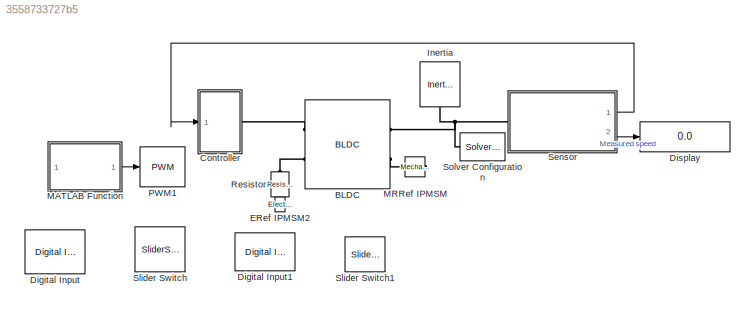
MODEL slx_3558733727b5
KIND model
CONFIG AbsTol = auto
CONFIG EnableMultiTasking = on
CONFIG FixedStep = auto
CONFIG InitFcn = load bldcData
CONFIG MaxStep = Ts_motor
CONFIG MinStep = auto
CONFIG RelTol = 1e-3
CONFIG SampleTimeConstraint = Unconstrained
CONFIG Solver = odeN
CONFIG SolverName = odeN
CONFIG StartTime = 0.0
CONFIG StopTime = 35
WORKSPACE source: mxarray member
WORKSPACE encoderResolution = 2000
WORKSPACE hallOffset = '0.5'
WORKSPACE indexOffset = 850
WORKSPACE polePairs = '4'
BLOCK [Reference] BLDC  REF=ee_lib/Electromechanical/Permanent Magnet/BLDC
  Ports = [0, 0, 0, 0, 0, 2, 2]
  SourceBlock = ee_lib/Electromechanical/Permanent Magnet/BLDC
  SourceProductBaseCode = PS
  SourceType = BLDC
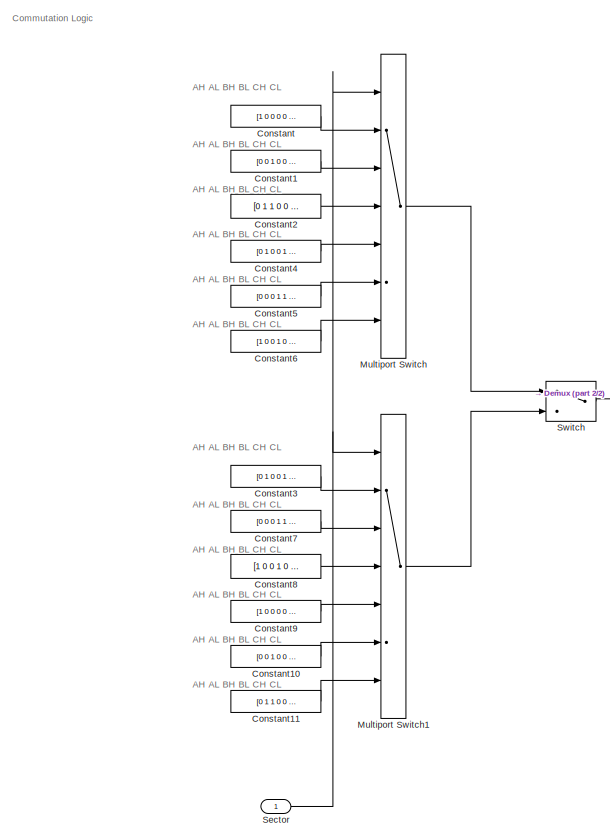
[diagram: Controller - part 1/2, left side, full height]
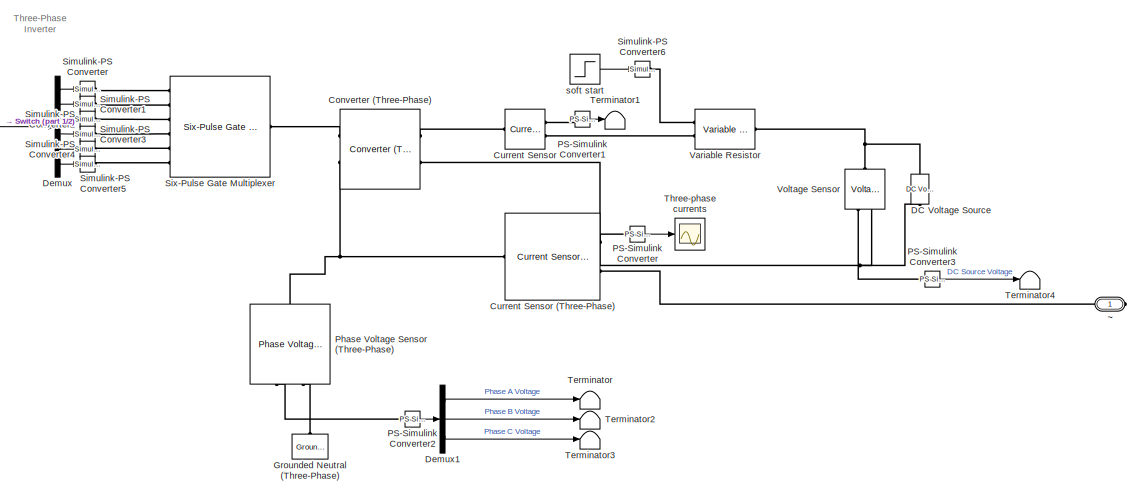
[diagram: Controller - part 2/2, middle right region]
BLOCK [SubSystem] Controller
  Ports = [1, 0, 0, 0, 0, 0, 1]
  RequestExecContextInheritance = off
BLOCK [Constant] Controller/Constant
  Value = [1 0 0 0 0 1]
BLOCK [Constant] Controller/Constant1
  Value = [0 0 1 0 0 1]
BLOCK [Constant] Controller/Constant10
  Value = [0 0 1 0 0 1]
BLOCK [Constant] Controller/Constant11
  Value = [0 1 1 0 0 0]
BLOCK [Constant] Controller/Constant2
  Value = [0 1 1 0 0 0]
BLOCK [Constant] Controller/Constant3
  Value = [0 1 0 0 1 0]
BLOCK [Constant] Controller/Constant4
  Value = [0 1 0 0 1 0]
BLOCK [Constant] Controller/Constant5
  Value = [0 0 0 1 1 0]
BLOCK [Constant] Controller/Constant6
  Value = [1 0 0 1 0 0]
BLOCK [Constant] Controller/Constant7
  Value = [0 0 0 1 1 0]
BLOCK [Constant] Controller/Constant8
  Value = [1 0 0 1 0 0]
BLOCK [Constant] Controller/Constant9
  Value = [1 0 0 0 0 1]
BLOCK [Reference] Controller/Converter (Three-Phase)  REF=ee_lib/Semiconductors &
Converters/Converters/Converter
(Three-Phase)
  Ports = [0, 0, 0, 0, 0, 2, 2]
  SourceBlock = ee_lib/Semiconductors &\nConverters/Converters/Converter\n(Three-Phase)
  SourceProductBaseCode = PS
  SourceType = Converter\n(Three-Phase)
BLOCK [Reference] Controller/Current Sensor  REF=fl_lib/Electrical/Electrical Sensors/Current Sensor
  Ports = [0, 0, 0, 0, 0, 1, 2]
  SourceBlock = fl_lib/Electrical/Electrical Sensors/Current Sensor
  SourceProductBaseCode = SS
  SourceType = Current Sensor
BLOCK [Reference] Controller/Current Sensor (Three-Phase)  REF=ee_lib/Sensors &
Transducers/Current Sensor
(Three-Phase)
  Ports = [0, 0, 0, 0, 0, 1, 2]
  SourceBlock = ee_lib/Sensors &\nTransducers/Current Sensor\n(Three-Phase)
  SourceProductBaseCode = PS
  SourceType = Current Sensor\n(Three-Phase)
BLOCK [Reference] Controller/DC Voltage Source  REF=ee_lib/Additional
Components/SPICE Sources/DC Voltage Source
  NameLocation = right
  Ports = [0, 0, 0, 0, 0, 1, 1]
  SourceBlock = ee_lib/Additional\nComponents/SPICE Sources/DC Voltage Source
  SourceProductBaseCode = PS
  SourceType = DC Voltage Source
BLOCK [Demux] Controller/Demux
  Outputs = 6
  Ports = [1, 6]
BLOCK [Demux] Controller/Demux1
  Outputs = 3
  Ports = [1, 3]
BLOCK [Reference] Controller/Grounded Neutral (Three-Phase)  REF=ee_lib/Connectors &
References/Grounded Neutral
(Three-Phase)
  NameLocation = right
  Ports = [0, 0, 0, 0, 0, 1]
  SourceBlock = ee_lib/Connectors &\nReferences/Grounded Neutral\n(Three-Phase)
  SourceProductBaseCode = PS
  SourceType = Grounded Neutral\n(Three-Phase)
BLOCK [MultiPortSwitch] Controller/Multiport Switch
  InputSameDT = off
  Inputs = 6
  Ports = [7, 1]
  SaturateOnIntegerOverflow = off
BLOCK [MultiPortSwitch] Controller/Multiport Switch1
  InputSameDT = off
  Inputs = 6
  Ports = [7, 1]
  SaturateOnIntegerOverflow = off
BLOCK [Reference] Controller/PS-Simulink Converter  REF=nesl_utility/PS-Simulink
Converter
  Ports = [0, 1, 0, 0, 0, 1]
  SourceBlock = nesl_utility/PS-Simulink\nConverter
  SourceProductBaseCode = SS
  SourceType = PS-Simulink\nConverter
BLOCK [Reference] Controller/PS-Simulink Converter1  REF=nesl_utility/PS-Simulink
Converter
  Ports = [0, 1, 0, 0, 0, 1]
  SourceBlock = nesl_utility/PS-Simulink\nConverter
  SourceProductBaseCode = SS
  SourceType = PS-Simulink\nConverter
BLOCK [Reference] Controller/PS-Simulink Converter2  REF=nesl_utility/PS-Simulink
Converter
  Ports = [0, 1, 0, 0, 0, 1]
  SourceBlock = nesl_utility/PS-Simulink\nConverter
  SourceProductBaseCode = SS
  SourceType = PS-Simulink\nConverter
BLOCK [Reference] Controller/PS-Simulink Converter3  REF=nesl_utility/PS-Simulink
Converter
  Ports = [0, 1, 0, 0, 0, 1]
  SourceBlock = nesl_utility/PS-Simulink\nConverter
  SourceProductBaseCode = SS
  SourceType = PS-Simulink\nConverter
BLOCK [Reference] Controller/Phase Voltage Sensor (Three-Phase)  REF=ee_lib/Sensors &
Transducers/Phase Voltage Sensor
(Three-Phase)
  NameLocation = right
  Ports = [0, 0, 0, 0, 0, 1, 2]
  SourceBlock = ee_lib/Sensors &\nTransducers/Phase Voltage Sensor\n(Three-Phase)
  SourceProductBaseCode = PS
  SourceType = Phase Voltage Sensor\n(Three-Phase)
BLOCK [Inport] Controller/Sector
BLOCK [Reference] Controller/Simulink-PS Converter  REF=nesl_utility/Simulink-PS
Converter
  Ports = [1, 0, 0, 0, 0, 0, 1]
  SourceBlock = nesl_utility/Simulink-PS\nConverter
  SourceProductBaseCode = SS
  SourceType = Simulink-PS\nConverter
BLOCK [Reference] Controller/Simulink-PS Converter1  REF=nesl_utility/Simulink-PS
Converter
  Ports = [1, 0, 0, 0, 0, 0, 1]
  SourceBlock = nesl_utility/Simulink-PS\nConverter
  SourceProductBaseCode = SS
  SourceType = Simulink-PS\nConverter
BLOCK [Reference] Controller/Simulink-PS Converter2  REF=nesl_utility/Simulink-PS
Converter
  Ports = [1, 0, 0, 0, 0, 0, 1]
  SourceBlock = nesl_utility/Simulink-PS\nConverter
  SourceProductBaseCode = SS
  SourceType = Simulink-PS\nConverter
BLOCK [Reference] Controller/Simulink-PS Converter3  REF=nesl_utility/Simulink-PS
Converter
  Ports = [1, 0, 0, 0, 0, 0, 1]
  SourceBlock = nesl_utility/Simulink-PS\nConverter
  SourceProductBaseCode = SS
  SourceType = Simulink-PS\nConverter
BLOCK [Reference] Controller/Simulink-PS Converter4  REF=nesl_utility/Simulink-PS
Converter
  Ports = [1, 0, 0, 0, 0, 0, 1]
  SourceBlock = nesl_utility/Simulink-PS\nConverter
  SourceProductBaseCode = SS
  SourceType = Simulink-PS\nConverter
BLOCK [Reference] Controller/Simulink-PS Converter5  REF=nesl_utility/Simulink-PS
Converter
  Ports = [1, 0, 0, 0, 0, 0, 1]
  SourceBlock = nesl_utility/Simulink-PS\nConverter
  SourceProductBaseCode = SS
  SourceType = Simulink-PS\nConverter
BLOCK [Reference] Controller/Simulink-PS Converter6  REF=nesl_utility/Simulink-PS
Converter
  Ports = [1, 0, 0, 0, 0, 0, 1]
  SourceBlock = nesl_utility/Simulink-PS\nConverter
  SourceProductBaseCode = SS
  SourceType = Simulink-PS\nConverter
BLOCK [Reference] Controller/Six-Pulse Gate Multiplexer  REF=ee_lib/Semiconductors &
Converters/Converters/Six-Pulse Gate
Multiplexer
  Ports = [0, 0, 0, 0, 0, 6, 1]
  SourceBlock = ee_lib/Semiconductors &\nConverters/Converters/Six-Pulse Gate\nMultiplexer
  SourceProductBaseCode = PS
  SourceType = Six-Pulse Gate\nMultiplexer
BLOCK [Switch] Controller/Switch
  Criteria = u2 > Threshold
  InputSameDT = off
  SaturateOnIntegerOverflow = off
  Threshold = 1
BLOCK [Terminator] Controller/Terminator
BLOCK [Terminator] Controller/Terminator1
BLOCK [Terminator] Controller/Terminator2
BLOCK [Terminator] Controller/Terminator3
BLOCK [Terminator] Controller/Terminator4
BLOCK [Scope] Controller/Three-phase currents
  Floating = off
  NumInputPorts = 1
  Ports = [1]
  ScopeSpecificationString = Simulink.scopes.TimeScopeBlockCfg('CurrentConfiguration', extmgr.ConfigurationSet(extmgr.Configuration('Core','General UI',true),extmgr.Configuration('Core','Source UI',true),extmgr.Configuration('Sources','WiredSimulink',true,'DataLoggingVariableName','ScopeData1'),extmgr.Configuration('Visuals','Time Domain',true,'SerializedDisplays',{struct('MinYLimReal','-1248.2374','MaxYLimReal','1248.23739',...<+1452ch>
BLOCK [Reference] Controller/Variable Resistor  REF=fl_lib/Electrical/Electrical Elements/Variable Resistor
  Ports = [0, 0, 0, 0, 0, 2, 1]
  SourceBlock = fl_lib/Electrical/Electrical Elements/Variable Resistor
  SourceProductBaseCode = SS
  SourceType = Variable Resistor
BLOCK [Reference] Controller/Voltage Sensor  REF=fl_lib/Electrical/Electrical Sensors/Voltage Sensor
  NameLocation = right
  Ports = [0, 0, 0, 0, 0, 1, 2]
  SourceBlock = fl_lib/Electrical/Electrical Sensors/Voltage Sensor
  SourceProductBaseCode = SS
  SourceType = Voltage Sensor
BLOCK [Step] Controller/soft start
  After = 1e-3
  Before = 0.5
  SampleTime = Ts_motor
  Time = 4
BLOCK [PMIOPort] Controller/~
  Side = Right
BLOCK [Reference] Digital Input  REF=arduinolib/Digital Input
  Ports = [0, 1]
  SourceBlock = arduinolib/Digital Input
  SourceProductBaseCode = ARDUINO
  SourceType = Arduino Digital Input
BLOCK [Reference] Digital Input1  REF=arduinolib/Digital Input
  Ports = [0, 1]
  SourceBlock = arduinolib/Digital Input
  SourceProductBaseCode = ARDUINO
  SourceType = Arduino Digital Input
BLOCK [Display] Display
  Decimation = 1
  Ports = [1]
BLOCK [Reference] ERef IPMSM2  REF=fl_lib/Electrical/Electrical Elements/Electrical Reference
  NameLocation = right
  Ports = [0, 0, 0, 0, 0, 1]
  SourceBlock = fl_lib/Electrical/Electrical Elements/Electrical Reference
  SourceProductName = Foundation Library
  SourceType = Electrical Reference
BLOCK [Reference] Inertia  REF=fl_lib/Mechanical/Rotational Elements/Inertia
  NameLocation = right
  Ports = [0, 0, 0, 0, 0, 1]
  SourceBlock = fl_lib/Mechanical/Rotational Elements/Inertia
  SourceProductName = Foundation Library
  SourceType = Inertia
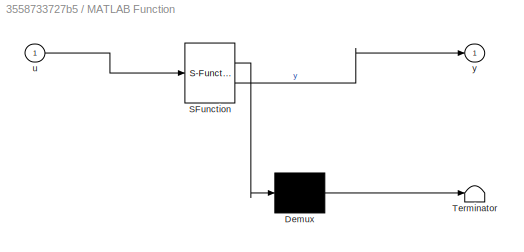
BLOCK [SubSystem] MATLAB Function
  ErrorFcn = Stateflow.Translate.translate
  PermitHierarchicalResolution = ExplicitOnly
  Ports = [1, 1]
  RequestExecContextInheritance = off
  SFBlockType = MATLAB Function
  TreatAsAtomicUnit = on
BLOCK [Demux] MATLAB Function/ Demux 
  Outputs = 1
  Ports = [1, 1]
BLOCK [S-Function] MATLAB Function/ SFunction 
  EnableBusSupport = off
  FunctionName = sf_sfun
  PortCounts = [1 2]
  Ports = [1, 2]
  SFcnIsStateOwnerBlock = off
  SFunctionDeploymentMode = off
  Tag = Stateflow S-Function 2
BLOCK [Terminator] MATLAB Function/ Terminator 
BLOCK [Inport] MATLAB Function/u
BLOCK [Outport] MATLAB Function/y
BLOCK [Reference] MRRef IPMSM  REF=fl_lib/Mechanical/Rotational Elements/Mechanical
Rotational Reference
  NameLocation = top
  Ports = [0, 0, 0, 0, 0, 1]
  SourceBlock = fl_lib/Mechanical/Rotational Elements/Mechanical\nRotational Reference
  SourceProductName = Foundation Library
  SourceType = Mechanical\nRotational Reference
BLOCK [Reference] PWM1  REF=arduinolib/PWM
  Ports = [1]
  SourceBlock = arduinolib/PWM
  SourceProductBaseCode = ARDUINO
  SourceType = Arduino PWM
BLOCK [Reference] Resistor  REF=fl_lib/Electrical/Electrical Elements/Resistor
  NameLocation = left
  Ports = [0, 0, 0, 0, 0, 1, 1]
  SourceBlock = fl_lib/Electrical/Electrical Elements/Resistor
  SourceProductBaseCode = SS
  SourceType = Resistor
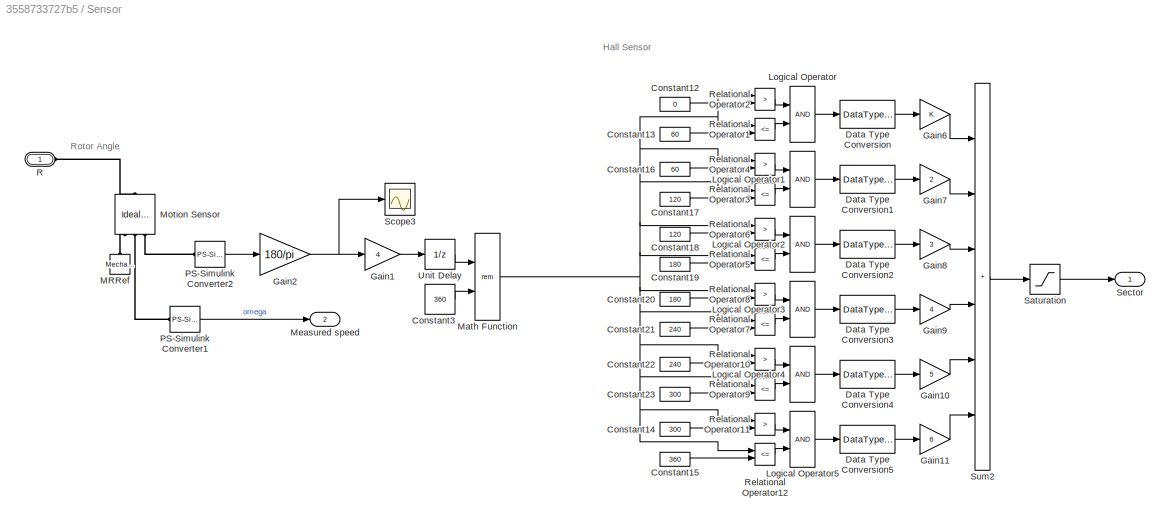
BLOCK [SubSystem] Sensor
  Ports = [0, 2, 0, 0, 0, 1]
  RequestExecContextInheritance = off
BLOCK [Constant] Sensor/Constant12
  Value = 0
BLOCK [Constant] Sensor/Constant13
  Value = 60
BLOCK [Constant] Sensor/Constant14
  Value = 300
BLOCK [Constant] Sensor/Constant15
  Value = 360
BLOCK [Constant] Sensor/Constant16
  Value = 60
BLOCK [Constant] Sensor/Constant17
  Value = 120
BLOCK [Constant] Sensor/Constant18
  Value = 120
BLOCK [Constant] Sensor/Constant19
  Value = 180
BLOCK [Constant] Sensor/Constant20
  Value = 180
BLOCK [Constant] Sensor/Constant21
  Value = 240
BLOCK [Constant] Sensor/Constant22
  Value = 240
BLOCK [Constant] Sensor/Constant23
  Value = 300
BLOCK [Constant] Sensor/Constant3
  Value = 360
BLOCK [DataTypeConversion] Sensor/Data Type Conversion
BLOCK [DataTypeConversion] Sensor/Data Type Conversion1
BLOCK [DataTypeConversion] Sensor/Data Type Conversion2
BLOCK [DataTypeConversion] Sensor/Data Type Conversion3
BLOCK [DataTypeConversion] Sensor/Data Type Conversion4
BLOCK [DataTypeConversion] Sensor/Data Type Conversion5
BLOCK [Gain] Sensor/Gain1
  Gain = 4
  NameLocation = top
BLOCK [Gain] Sensor/Gain10
  Gain = 5
  OutDataTypeStr = Inherit: Same as input
  ParamDataTypeStr = Inherit: Same as input
  SaturateOnIntegerOverflow = on
BLOCK [Gain] Sensor/Gain11
  Gain = 6
  OutDataTypeStr = Inherit: Same as input
  ParamDataTypeStr = Inherit: Same as input
  SaturateOnIntegerOverflow = on
BLOCK [Gain] Sensor/Gain2
  Gain = 180/pi
BLOCK [Gain] Sensor/Gain6
  OutDataTypeStr = Inherit: Same as input
  ParamDataTypeStr = Inherit: Same as input
  SaturateOnIntegerOverflow = on
BLOCK [Gain] Sensor/Gain7
  Gain = 2
  OutDataTypeStr = Inherit: Same as input
  ParamDataTypeStr = Inherit: Same as input
  SaturateOnIntegerOverflow = on
BLOCK [Gain] Sensor/Gain8
  Gain = 3
  OutDataTypeStr = Inherit: Same as input
  ParamDataTypeStr = Inherit: Same as input
  SaturateOnIntegerOverflow = on
BLOCK [Gain] Sensor/Gain9
  Gain = 4
  OutDataTypeStr = Inherit: Same as input
  ParamDataTypeStr = Inherit: Same as input
  SaturateOnIntegerOverflow = on
BLOCK [Logic] Sensor/Logical Operator
  Ports = [2, 1]
BLOCK [Logic] Sensor/Logical Operator1
  Ports = [2, 1]
BLOCK [Logic] Sensor/Logical Operator2
  Ports = [2, 1]
BLOCK [Logic] Sensor/Logical Operator3
  Ports = [2, 1]
BLOCK [Logic] Sensor/Logical Operator4
  Ports = [2, 1]
BLOCK [Logic] Sensor/Logical Operator5
  Ports = [2, 1]
BLOCK [Reference] Sensor/MRRef  REF=fl_lib/Mechanical/Rotational Elements/Mechanical
Rotational Reference
  NameLocation = left
  Ports = [0, 0, 0, 0, 0, 1]
  SourceBlock = fl_lib/Mechanical/Rotational Elements/Mechanical\nRotational Reference
  SourceProductName = Foundation Library
  SourceType = Mechanical\nRotational Reference
BLOCK [Math] Sensor/Math Function
  Operator = rem
  Ports = [2, 1]
  SignedPower = on
BLOCK [Outport] Sensor/Measured speed
  Port = 2
BLOCK [Reference] Sensor/Motion Sensor  REF=fl_lib/Mechanical/Mechanical Sensors/Ideal Rotational
Motion Sensor
  NameLocation = right
  Ports = [0, 0, 0, 0, 0, 1, 3]
  SourceBlock = fl_lib/Mechanical/Mechanical Sensors/Ideal Rotational\nMotion Sensor
  SourceProductName = Foundation Library
  SourceType = Ideal Rotational\nMotion Sensor
BLOCK [Reference] Sensor/PS-Simulink Converter1  REF=nesl_utility/PS-Simulink
Converter
  Ports = [0, 1, 0, 0, 0, 1]
  SourceBlock = nesl_utility/PS-Simulink\nConverter
  SourceProductBaseCode = SS
  SourceType = PS-Simulink\nConverter
BLOCK [Reference] Sensor/PS-Simulink Converter2  REF=nesl_utility/PS-Simulink
Converter
  Ports = [0, 1, 0, 0, 0, 1]
  SourceBlock = nesl_utility/PS-Simulink\nConverter
  SourceProductBaseCode = SS
  SourceType = PS-Simulink\nConverter
BLOCK [PMIOPort] Sensor/R
  NameLocation = top
  Side = Left
BLOCK [RelationalOperator] Sensor/Relational Operator1
  Operator = <=
  Ports = [2, 1]
BLOCK [RelationalOperator] Sensor/Relational Operator10
  Operator = >
  Ports = [2, 1]
BLOCK [RelationalOperator] Sensor/Relational Operator11
  Operator = >
  Ports = [2, 1]
BLOCK [RelationalOperator] Sensor/Relational Operator12
  Operator = <=
  Ports = [2, 1]
BLOCK [RelationalOperator] Sensor/Relational Operator2
  Operator = >
  Ports = [2, 1]
BLOCK [RelationalOperator] Sensor/Relational Operator3
  Operator = <=
  Ports = [2, 1]
BLOCK [RelationalOperator] Sensor/Relational Operator4
  Operator = >
  Ports = [2, 1]
BLOCK [RelationalOperator] Sensor/Relational Operator5
  Operator = <=
  Ports = [2, 1]
BLOCK [RelationalOperator] Sensor/Relational Operator6
  Operator = >
  Ports = [2, 1]
BLOCK [RelationalOperator] Sensor/Relational Operator7
  Operator = <=
  Ports = [2, 1]
BLOCK [RelationalOperator] Sensor/Relational Operator8
  Operator = >
  Ports = [2, 1]
BLOCK [RelationalOperator] Sensor/Relational Operator9
  Operator = <=
  Ports = [2, 1]
BLOCK [Saturate] Sensor/Saturation
  LowerLimit = 1
  UpperLimit = 6
BLOCK [Scope] Sensor/Scope3
  Floating = off
  NumInputPorts = 1
  Ports = [1]
  ScopeSpecificationString = Simulink.scopes.TimeScopeBlockCfg('CurrentConfiguration', extmgr.ConfigurationSet(extmgr.Configuration('Core','General UI',true),extmgr.Configuration('Core','Source UI',true),extmgr.Configuration('Sources','WiredSimulink',true,'DataLoggingVariableName','ScopeData1','DataLogging',true,'DataLoggingSaveFormat','StructureWithTime'),extmgr.Configuration('Visuals','Time Domain',true,'SerializedDisplays'...<+1543ch>
BLOCK [Outport] Sensor/Sector
  NameLocation = top
BLOCK [Sum] Sensor/Sum2
  IconShape = rectangular
  InputSameDT = on
  Inputs = ++++++
  OutDataTypeStr = Inherit: Same as first input
  Ports = [6, 1]
  SaturateOnIntegerOverflow = on
BLOCK [UnitDelay] Sensor/Unit Delay
  HasFrameUpgradeWarning = on
  SampleTime = Ts_motor
BLOCK [SliderSwitchBlock] Slider Switch
BLOCK [SliderSwitchBlock] Slider Switch1
BLOCK [Reference] Solver Configuration  REF=nesl_utility/Solver
Configuration
  NameLocation = top
  Ports = [0, 0, 0, 0, 0, 0, 1]
  SourceBlock = nesl_utility/Solver\nConfiguration
  SourceProductBaseCode = SS
  SourceType = Solver\nConfiguration
ANNOTATION Controller: AH AL BH BL CH CL
ANNOTATION Controller: Commutation Logic
ANNOTATION Controller: Three-Phase Inverter
ANNOTATION Sensor: Hall Sensor
ANNOTATION Sensor: Rotor Angle
LINE Controller/Constant10:1 -> Controller/Multiport Switch1:6
LINE Controller/Constant11:1 -> Controller/Multiport Switch1:7
LINE Controller/Constant1:1 -> Controller/Multiport Switch:3
LINE Controller/Constant2:1 -> Controller/Multiport Switch:4
LINE Controller/Constant3:1 -> Controller/Multiport Switch1:2
LINE Controller/Constant4:1 -> Controller/Multiport Switch:5
LINE Controller/Constant5:1 -> Controller/Multiport Switch:6
LINE Controller/Constant6:1 -> Controller/Multiport Switch:7
LINE Controller/Constant7:1 -> Controller/Multiport Switch1:3
LINE Controller/Constant8:1 -> Controller/Multiport Switch1:4
LINE Controller/Constant9:1 -> Controller/Multiport Switch1:5
LINE Controller/Constant:1 -> Controller/Multiport Switch:2
LINE Controller/Demux1:1 -> Controller/Terminator:1
LINE Controller/Demux1:2 -> Controller/Terminator2:1
LINE Controller/Demux1:3 -> Controller/Terminator3:1
LINE Controller/Demux:1 -> Controller/Simulink-PS Converter:1
LINE Controller/Demux:2 -> Controller/Simulink-PS Converter1:1
LINE Controller/Demux:3 -> Controller/Simulink-PS Converter2:1
LINE Controller/Demux:4 -> Controller/Simulink-PS Converter3:1
LINE Controller/Demux:5 -> Controller/Simulink-PS Converter4:1
LINE Controller/Demux:6 -> Controller/Simulink-PS Converter5:1
LINE Controller/Multiport Switch1:1 -> Controller/Switch:3
LINE Controller/Multiport Switch:1 -> Controller/Switch:1
LINE Controller/PS-Simulink Converter1:1 -> Controller/Terminator1:1
LINE Controller/PS-Simulink Converter2:1 -> Controller/Demux1:1
LINE Controller/PS-Simulink Converter3:1 -> Controller/Terminator4:1
LINE Controller/PS-Simulink Converter:1 -> Controller/Three-phase currents:1
NET Controller/Sector:1 -> Controller/Multiport Switch1:1, Controller/Multiport Switch:1
LINE Controller/Switch:1 -> Controller/Demux:1
LINE Controller/soft start:1 -> Controller/Simulink-PS Converter6:1
LINE MATLAB Function:1 -> PWM1:1
LINE Sensor/Constant12:1 -> Sensor/Relational Operator2:2
LINE Sensor/Constant13:1 -> Sensor/Relational Operator1:2
LINE Sensor/Constant14:1 -> Sensor/Relational Operator11:2
LINE Sensor/Constant15:1 -> Sensor/Relational Operator12:2
LINE Sensor/Constant16:1 -> Sensor/Relational Operator4:2
LINE Sensor/Constant17:1 -> Sensor/Relational Operator3:2
LINE Sensor/Constant18:1 -> Sensor/Relational Operator6:2
LINE Sensor/Constant19:1 -> Sensor/Relational Operator5:2
LINE Sensor/Constant20:1 -> Sensor/Relational Operator8:2
LINE Sensor/Constant21:1 -> Sensor/Relational Operator7:2
LINE Sensor/Constant22:1 -> Sensor/Relational Operator10:2
LINE Sensor/Constant23:1 -> Sensor/Relational Operator9:2
LINE Sensor/Constant3:1 -> Sensor/Math Function:2
LINE Sensor/Data Type Conversion1:1 -> Sensor/Gain7:1
LINE Sensor/Data Type Conversion2:1 -> Sensor/Gain8:1
LINE Sensor/Data Type Conversion3:1 -> Sensor/Gain9:1
LINE Sensor/Data Type Conversion4:1 -> Sensor/Gain10:1
LINE Sensor/Data Type Conversion5:1 -> Sensor/Gain11:1
LINE Sensor/Data Type Conversion:1 -> Sensor/Gain6:1
LINE Sensor/Gain10:1 -> Sensor/Sum2:5
LINE Sensor/Gain11:1 -> Sensor/Sum2:6
LINE Sensor/Gain1:1 -> Sensor/Unit Delay:1
NET Sensor/Gain2:1 -> Sensor/Gain1:1, Sensor/Scope3:1
LINE Sensor/Gain6:1 -> Sensor/Sum2:1
LINE Sensor/Gain7:1 -> Sensor/Sum2:2
LINE Sensor/Gain8:1 -> Sensor/Sum2:3
LINE Sensor/Gain9:1 -> Sensor/Sum2:4
LINE Sensor/Logical Operator1:1 -> Sensor/Data Type Conversion1:1
LINE Sensor/Logical Operator2:1 -> Sensor/Data Type Conversion2:1
LINE Sensor/Logical Operator3:1 -> Sensor/Data Type Conversion3:1
LINE Sensor/Logical Operator4:1 -> Sensor/Data Type Conversion4:1
LINE Sensor/Logical Operator5:1 -> Sensor/Data Type Conversion5:1
LINE Sensor/Logical Operator:1 -> Sensor/Data Type Conversion:1
NET Sensor/Math Function:1 -> Sensor/Relational Operator10:1, Sensor/Relational Operator11:1, Sensor/Relational Operator12:1, Sensor/Relational Operator1:1, Sensor/Relational Operator2:1, Sensor/Relational Operator3:1, Sensor/Relational Operator4:1, Sensor/Relational Operator5:1, Sensor/Relational Operator6:1, Sensor/Relational Operator7:1, Sensor/Relational Operator8:1, Sensor/Relational Operator9:1
LINE Sensor/PS-Simulink Converter1:1 -> Sensor/Measured speed:1
LINE Sensor/PS-Simulink Converter2:1 -> Sensor/Gain2:1
LINE Sensor/Relational Operator10:1 -> Sensor/Logical Operator4:1
LINE Sensor/Relational Operator11:1 -> Sensor/Logical Operator5:1
LINE Sensor/Relational Operator12:1 -> Sensor/Logical Operator5:2
LINE Sensor/Relational Operator1:1 -> Sensor/Logical Operator:2
LINE Sensor/Relational Operator2:1 -> Sensor/Logical Operator:1
LINE Sensor/Relational Operator3:1 -> Sensor/Logical Operator1:2
LINE Sensor/Relational Operator4:1 -> Sensor/Logical Operator1:1
LINE Sensor/Relational Operator5:1 -> Sensor/Logical Operator2:2
LINE Sensor/Relational Operator6:1 -> Sensor/Logical Operator2:1
LINE Sensor/Relational Operator7:1 -> Sensor/Logical Operator3:2
LINE Sensor/Relational Operator8:1 -> Sensor/Logical Operator3:1
LINE Sensor/Relational Operator9:1 -> Sensor/Logical Operator4:2
LINE Sensor/Saturation:1 -> Sensor/Sector:1
LINE Sensor/Sum2:1 -> Sensor/Saturation:1
LINE Sensor/Unit Delay:1 -> Sensor/Math Function:1
LINE Sensor:1 -> Controller:1
LINE Sensor:2 -> Display:1
PLINE BLDC:LConn1 -- Controller:RConn1
PLINE BLDC:LConn2 -- Resistor:LConn1
PNET net1: BLDC:RConn1 -- Inertia:LConn1 -- Sensor:LConn1 -- Solver Configuration:RConn1
PLINE BLDC:RConn2 -- MRRef IPMSM:LConn1
PLINE Controller/Converter (Three-Phase):LConn1 -- Controller/Six-Pulse Gate Multiplexer:RConn1
PNET net2: Controller/Converter (Three-Phase):LConn2 -- Controller/Current Sensor (Three-Phase):LConn1 -- Controller/Phase Voltage Sensor (Three-Phase):LConn1
PLINE Controller/Converter (Three-Phase):RConn1 -- Controller/Current Sensor:LConn1
PNET net3: Controller/Converter (Three-Phase):RConn2 -- Controller/DC Voltage Source:RConn1 -- Controller/Voltage Sensor:RConn2
PLINE Controller/Current Sensor (Three-Phase):RConn1 -- Controller/PS-Simulink Converter:LConn1
PLINE Controller/Current Sensor (Three-Phase):RConn2 -- Controller/~:RConn1
PLINE Controller/Current Sensor:RConn1 -- Controller/PS-Simulink Converter1:LConn1
PLINE Controller/Current Sensor:RConn2 -- Controller/Variable Resistor:LConn2
PNET net4: Controller/DC Voltage Source:LConn1 -- Controller/Variable Resistor:RConn1 -- Controller/Voltage Sensor:LConn1
PLINE Controller/Grounded Neutral (Three-Phase):LConn1 -- Controller/Phase Voltage Sensor (Three-Phase):RConn2
PLINE Controller/PS-Simulink Converter2:LConn1 -- Controller/Phase Voltage Sensor (Three-Phase):RConn1
PLINE Controller/PS-Simulink Converter3:LConn1 -- Controller/Voltage Sensor:RConn1
PLINE Controller/Simulink-PS Converter1:RConn1 -- Controller/Six-Pulse Gate Multiplexer:LConn2
PLINE Controller/Simulink-PS Converter2:RConn1 -- Controller/Six-Pulse Gate Multiplexer:LConn3
PLINE Controller/Simulink-PS Converter3:RConn1 -- Controller/Six-Pulse Gate Multiplexer:LConn4
PLINE Controller/Simulink-PS Converter4:RConn1 -- Controller/Six-Pulse Gate Multiplexer:LConn5
PLINE Controller/Simulink-PS Converter5:RConn1 -- Controller/Six-Pulse Gate Multiplexer:LConn6
PLINE Controller/Simulink-PS Converter6:RConn1 -- Controller/Variable Resistor:LConn1
PLINE Controller/Simulink-PS Converter:RConn1 -- Controller/Six-Pulse Gate Multiplexer:LConn1
PLINE ERef IPMSM2:LConn1 -- Resistor:RConn1
PLINE Sensor/MRRef:LConn1 -- Sensor/Motion Sensor:RConn1
PLINE Sensor/Motion Sensor:LConn1 -- Sensor/R:RConn1
PLINE Sensor/Motion Sensor:RConn2 -- Sensor/PS-Simulink Converter1:LConn1
PLINE Sensor/Motion Sensor:RConn3 -- Sensor/PS-Simulink Converter2:LConn1
note: NET lines group one-source signal fan-out (src -> all destinations, sorted); 1:1 wires keep LINE; PNET lines group multi-terminal physical nets as a canonical sorted terminal list (undirected conserving connections); 2-terminal nets keep the pairwise PLINE form
CHART MATLAB Function states=1 transitions=1
  STATE_LABEL 'eML_blk_kernel()'
  STATE_LABEL 'SCRIPT:\nfunction y = fcn(u)\na = arduino;\nint switch_1 switch_2;\nif switch_1 == 1 && switch_2 == 1\n    u = 50;\n    \nelse if switch_1 == 1 && switch_2 == 1\n        u = 50;\n        \n    else\n        u=0;\n    end\nend\n\n\n \n\ny = u;\n'
CHART  states=0 transitions=0
